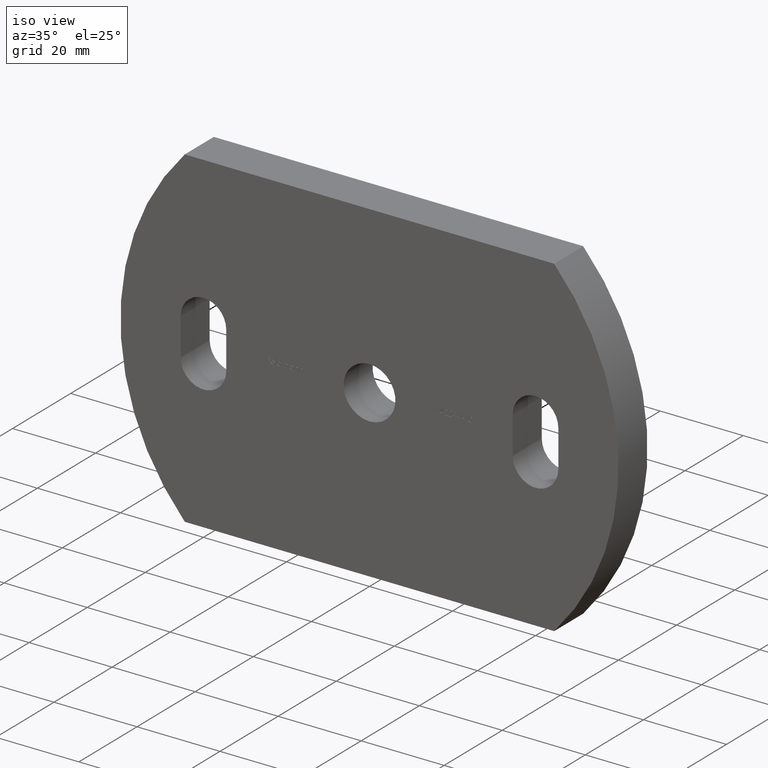
[diagram: clean part render]
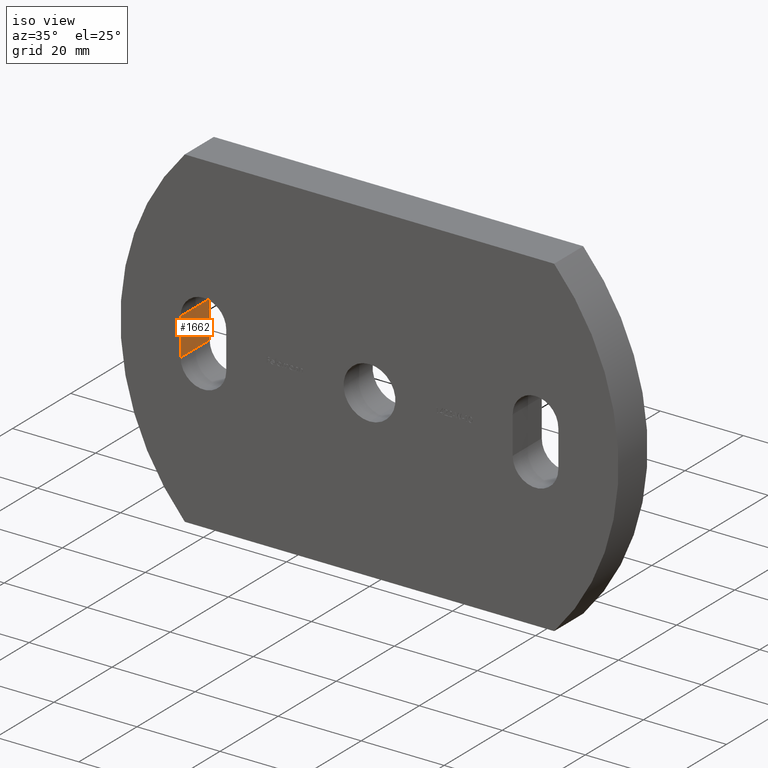
[diagram: same view with one face highlighted and labeled with its STEP entity id]
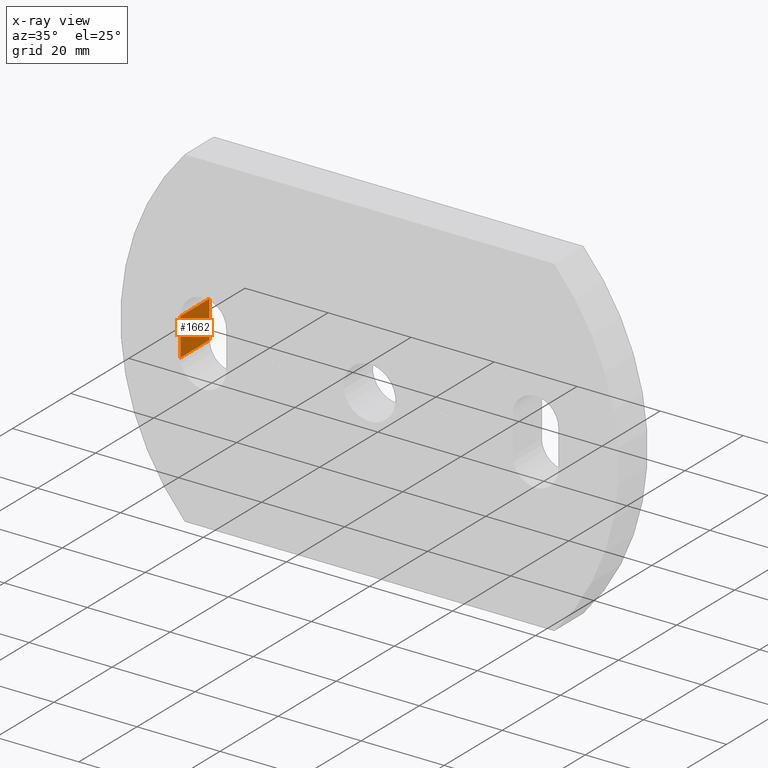
[diagram: x-ray of the same camera — body ghosted, the highlighted face saturated]
A machine part, iso view. The second image highlights one B-rep face of the part: STEP entity #1662.
The next image is the same camera in x-ray: the body ghosted, the highlighted face saturated — about 0% of this face is hidden behind the body in this view.
In plain terms, the highlighted planar face has unit normal (-1, 0, 0).
Its self-contained STEP definition (entity closure, byte-faithful):
#584 = CARTESIAN_POINT ( 'NONE',  ( -45.50000000000000000, 0.0000000000000000000, 4.499999999999986700 ) ) ;
#856 = CARTESIAN_POINT ( 'NONE',  ( -45.50000000000000000, 10.00000000000000000, -4.499999999999989300 ) ) ;
#1340 = CARTESIAN_POINT ( 'NONE',  ( -45.50000000000000000, 10.00000000000000000, 4.499999999999986700 ) ) ;
#1651 = DIRECTION ( 'NONE',  ( 0.0000000000000000000, 0.0000000000000000000, 1.000000000000000000 ) ) ;
#1662 = ADVANCED_FACE ( 'NONE', ( #4597 ), #6854, .F. ) ;
#1773 = DIRECTION ( 'NONE',  ( 0.0000000000000000000, 0.0000000000000000000, 1.000000000000000000 ) ) ;
#1994 = DIRECTION ( 'NONE',  ( 0.0000000000000000000, 0.0000000000000000000, 1.000000000000000000 ) ) ;
#2344 = EDGE_LOOP ( 'NONE', ( #6961, #4396, #7886, #2430 ) ) ;
#2430 = ORIENTED_EDGE ( 'NONE', *, *, #6941, .T. ) ;
#2692 = CARTESIAN_POINT ( 'NONE',  ( -45.50000000000000000, 0.0000000000000000000, -4.499999999999989300 ) ) ;
#2710 = EDGE_CURVE ( 'NONE', #6095, #9813, #7765, .T. ) ;
#2751 = LINE ( 'NONE', #5598, #4437 ) ;
#2976 = VECTOR ( 'NONE', #3201, 1000.000000000000000 ) ;
#2998 = LINE ( 'NONE', #584, #7844 ) ;
#3201 = DIRECTION ( 'NONE',  ( -0.0000000000000000000, 1.000000000000000000, -0.0000000000000000000 ) ) ;
#3679 = AXIS2_PLACEMENT_3D ( 'NONE', #7655, #4424, #1994 ) ;
#3940 = DIRECTION ( 'NONE',  ( -0.0000000000000000000, 1.000000000000000000, -0.0000000000000000000 ) ) ;
#4164 = CARTESIAN_POINT ( 'NONE',  ( -45.50000000000000000, 0.0000000000000000000, 4.499999999999986700 ) ) ;
#4396 = ORIENTED_EDGE ( 'NONE', *, *, #5668, .F. ) ;
#4424 = DIRECTION ( 'NONE',  ( -1.000000000000000000, 0.0000000000000000000, 0.0000000000000000000 ) ) ;
#4437 = VECTOR ( 'NONE', #1651, 1000.000000000000000 ) ;
#4597 = FACE_OUTER_BOUND ( 'NONE', #2344, .T. ) ;
#4766 = EDGE_CURVE ( 'NONE', #10481, #4998, #2751, .T. ) ;
#4998 = VERTEX_POINT ( 'NONE', #1340 ) ;
#5598 = CARTESIAN_POINT ( 'NONE',  ( -45.50000000000000000, 10.00000000000000000, -4.499999999999989300 ) ) ;
#5668 = EDGE_CURVE ( 'NONE', #9813, #4998, #2998, .T. ) ;
#6095 = VERTEX_POINT ( 'NONE', #2692 ) ;
#6854 = PLANE ( 'NONE',  #3679 ) ;
#6941 = EDGE_CURVE ( 'NONE', #6095, #10481, #7070, .T. ) ;
#6961 = ORIENTED_EDGE ( 'NONE', *, *, #4766, .T. ) ;
#7070 = LINE ( 'NONE', #7112, #2976 ) ;
#7112 = CARTESIAN_POINT ( 'NONE',  ( -45.50000000000000000, 0.0000000000000000000, -4.499999999999989300 ) ) ;
#7655 = CARTESIAN_POINT ( 'NONE',  ( -45.50000000000000000, 0.0000000000000000000, -4.499999999999989300 ) ) ;
#7765 = LINE ( 'NONE', #9847, #7893 ) ;
#7844 = VECTOR ( 'NONE', #3940, 1000.000000000000000 ) ;
#7886 = ORIENTED_EDGE ( 'NONE', *, *, #2710, .F. ) ;
#7893 = VECTOR ( 'NONE', #1773, 1000.000000000000000 ) ;
#9813 = VERTEX_POINT ( 'NONE', #4164 ) ;
#9847 = CARTESIAN_POINT ( 'NONE',  ( -45.50000000000000000, 0.0000000000000000000, -4.499999999999989300 ) ) ;
#10481 = VERTEX_POINT ( 'NONE', #856 ) ;